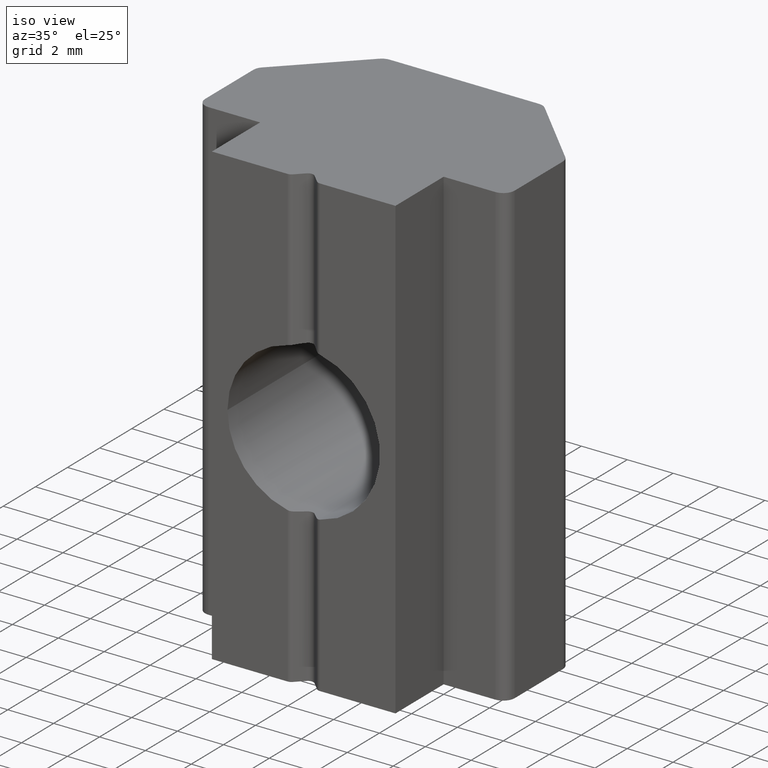
[diagram: clean part render]
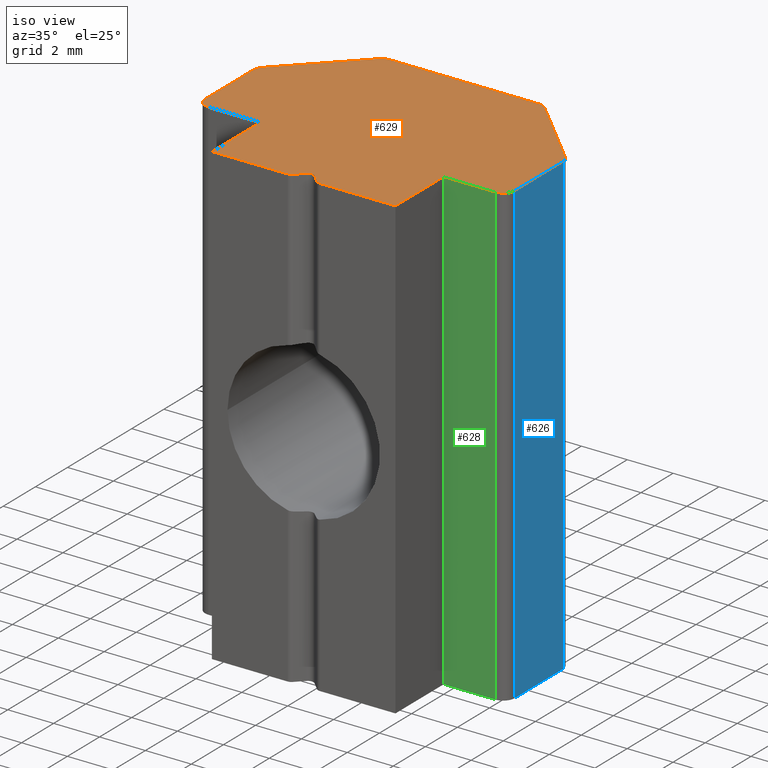
[diagram: same view with three faces highlighted in distinct colors, each labeled with its STEP entity id]
A machine part, iso view with three faces highlighted in distinct colors.
Their STEP definitions:

[orange] entity #629 — the highlighted planar face has unit normal (0, 0, 1).
#32=PLANE('',#707);
#63=FACE_OUTER_BOUND('',#94,.T.);
#94=EDGE_LOOP('',(#564,#565,#566,#567,#568,#569,#570,#571,#572,#573,#574,
#575,#576,#577,#578,#579,#580,#581,#582,#583,#584,#585));
#105=LINE('',#993,#162);
#115=LINE('',#1020,#172);
#120=LINE('',#1034,#177);
#123=LINE('',#1042,#180);
#124=LINE('',#1045,#181);
#137=LINE('',#1079,#194);
#138=LINE('',#1082,#195);
#140=LINE('',#1086,#197);
#143=LINE('',#1094,#200);
#146=LINE('',#1102,#203);
#149=LINE('',#1110,#206);
#152=LINE('',#1118,#209);
#155=LINE('',#1125,#212);
#162=VECTOR('',#742,10.);
#172=VECTOR('',#774,10.);
#177=VECTOR('',#787,10.);
#180=VECTOR('',#796,10.);
#181=VECTOR('',#799,10.);
#194=VECTOR('',#826,10.);
#195=VECTOR('',#829,10.);
#197=VECTOR('',#833,10.);
#200=VECTOR('',#842,10.);
#203=VECTOR('',#851,10.);
#206=VECTOR('',#862,10.);
#209=VECTOR('',#871,10.);
#212=VECTOR('',#880,10.);
#220=CIRCLE('',#667,0.25);
#222=CIRCLE('',#671,0.249999999999999);
#223=CIRCLE('',#675,0.5);
#225=CIRCLE('',#679,0.25);
#231=CIRCLE('',#692,0.499999999999999);
#232=CIRCLE('',#695,0.500000000000005);
#233=CIRCLE('',#698,0.499999999999994);
#234=CIRCLE('',#702,0.500000000000001);
#235=CIRCLE('',#705,0.499999999999999);
#267=VERTEX_POINT('',#990);
#268=VERTEX_POINT('',#992);
#271=VERTEX_POINT('',#1004);
#272=VERTEX_POINT('',#1006);
#274=VERTEX_POINT('',#1014);
#275=VERTEX_POINT('',#1022);
#276=VERTEX_POINT('',#1024);
#279=VERTEX_POINT('',#1032);
#280=VERTEX_POINT('',#1036);
#281=VERTEX_POINT('',#1038);
#282=VERTEX_POINT('',#1044);
#296=VERTEX_POINT('',#1077);
#297=VERTEX_POINT('',#1081);
#298=VERTEX_POINT('',#1085);
#299=VERTEX_POINT('',#1089);
#300=VERTEX_POINT('',#1093);
#301=VERTEX_POINT('',#1097);
#302=VERTEX_POINT('',#1101);
#303=VERTEX_POINT('',#1109);
#304=VERTEX_POINT('',#1113);
#305=VERTEX_POINT('',#1117);
#306=VERTEX_POINT('',#1121);
#332=EDGE_CURVE('',#268,#267,#105,.T.);
#339=EDGE_CURVE('',#272,#271,#220,.T.);
#343=EDGE_CURVE('',#274,#268,#222,.T.);
#346=EDGE_CURVE('',#271,#274,#115,.T.);
#348=EDGE_CURVE('',#276,#275,#223,.T.);
#353=EDGE_CURVE('',#275,#279,#120,.T.);
#355=EDGE_CURVE('',#281,#280,#225,.T.);
#357=EDGE_CURVE('',#280,#272,#123,.T.);
#358=EDGE_CURVE('',#282,#281,#124,.T.);
#376=EDGE_CURVE('',#267,#296,#137,.T.);
#377=EDGE_CURVE('',#297,#282,#138,.T.);
#379=EDGE_CURVE('',#298,#297,#140,.T.);
#381=EDGE_CURVE('',#299,#298,#231,.T.);
#383=EDGE_CURVE('',#300,#299,#143,.T.);
#385=EDGE_CURVE('',#301,#300,#232,.T.);
#387=EDGE_CURVE('',#302,#301,#146,.T.);
#390=EDGE_CURVE('',#279,#302,#233,.T.);
#391=EDGE_CURVE('',#303,#276,#149,.T.);
#393=EDGE_CURVE('',#304,#303,#234,.T.);
#395=EDGE_CURVE('',#305,#304,#152,.T.);
#397=EDGE_CURVE('',#306,#305,#235,.T.);
#399=EDGE_CURVE('',#296,#306,#155,.T.);
#564=ORIENTED_EDGE('',*,*,#343,.T.);
#565=ORIENTED_EDGE('',*,*,#332,.T.);
#566=ORIENTED_EDGE('',*,*,#376,.T.);
#567=ORIENTED_EDGE('',*,*,#399,.T.);
#568=ORIENTED_EDGE('',*,*,#397,.T.);
#569=ORIENTED_EDGE('',*,*,#395,.T.);
#570=ORIENTED_EDGE('',*,*,#393,.T.);
#571=ORIENTED_EDGE('',*,*,#391,.T.);
#572=ORIENTED_EDGE('',*,*,#348,.T.);
#573=ORIENTED_EDGE('',*,*,#353,.T.);
#574=ORIENTED_EDGE('',*,*,#390,.T.);
#575=ORIENTED_EDGE('',*,*,#387,.T.);
#576=ORIENTED_EDGE('',*,*,#385,.T.);
#577=ORIENTED_EDGE('',*,*,#383,.T.);
#578=ORIENTED_EDGE('',*,*,#381,.T.);
#579=ORIENTED_EDGE('',*,*,#379,.T.);
#580=ORIENTED_EDGE('',*,*,#377,.T.);
#581=ORIENTED_EDGE('',*,*,#358,.T.);
#582=ORIENTED_EDGE('',*,*,#355,.T.);
#583=ORIENTED_EDGE('',*,*,#357,.T.);
#584=ORIENTED_EDGE('',*,*,#339,.T.);
#585=ORIENTED_EDGE('',*,*,#346,.T.);
#629=ADVANCED_FACE('',(#63),#32,.T.);
#667=AXIS2_PLACEMENT_3D('',#1007,#756,#757);
#671=AXIS2_PLACEMENT_3D('',#1015,#766,#767);
#675=AXIS2_PLACEMENT_3D('',#1025,#778,#779);
#679=AXIS2_PLACEMENT_3D('',#1039,#791,#792);
#692=AXIS2_PLACEMENT_3D('',#1090,#837,#838);
#695=AXIS2_PLACEMENT_3D('',#1098,#846,#847);
#698=AXIS2_PLACEMENT_3D('',#1106,#856,#857);
#702=AXIS2_PLACEMENT_3D('',#1114,#866,#867);
#705=AXIS2_PLACEMENT_3D('',#1122,#875,#876);
#707=AXIS2_PLACEMENT_3D('',#1126,#881,#882);
#742=DIRECTION('',(1.,0.,0.));
#756=DIRECTION('center_axis',(0.,0.,-1.));
#757=DIRECTION('ref_axis',(0.707106781186547,0.707106781186548,0.));
#766=DIRECTION('center_axis',(0.,0.,1.));
#767=DIRECTION('ref_axis',(0.707106781186548,0.707106781186547,0.));
#774=DIRECTION('',(0.707106781186545,-0.707106781186549,0.));
#778=DIRECTION('center_axis',(0.,0.,1.));
#779=DIRECTION('ref_axis',(0.707106781186548,0.707106781186547,0.));
#787=DIRECTION('',(-1.,0.,0.));
#791=DIRECTION('center_axis',(0.,0.,1.));
#792=DIRECTION('ref_axis',(5.55111512312579E-16,1.,0.));
#796=DIRECTION('',(0.707106781186547,0.707106781186548,0.));
#799=DIRECTION('',(1.,0.,0.));
#826=DIRECTION('',(0.,1.,0.));
#829=DIRECTION('',(0.,-1.,0.));
#833=DIRECTION('',(1.,0.,0.));
#837=DIRECTION('center_axis',(0.,0.,1.));
#838=DIRECTION('ref_axis',(-1.,0.,0.));
#842=DIRECTION('',(0.,-1.,0.));
#846=DIRECTION('center_axis',(0.,0.,1.));
#847=DIRECTION('ref_axis',(-0.707106781186549,0.707106781186546,0.));
#851=DIRECTION('',(-0.707106781186547,-0.707106781186548,0.));
#856=DIRECTION('center_axis',(0.,0.,1.));
#857=DIRECTION('ref_axis',(0.,1.,0.));
#862=DIRECTION('',(-0.707106781186547,0.707106781186548,0.));
#866=DIRECTION('center_axis',(0.,0.,1.));
#867=DIRECTION('ref_axis',(1.,-1.11022302462516E-15,0.));
#871=DIRECTION('',(-3.70074341541719E-16,1.,0.));
#875=DIRECTION('center_axis',(0.,0.,1.));
#876=DIRECTION('ref_axis',(0.,-1.,0.));
#880=DIRECTION('',(1.,0.,0.));
#881=DIRECTION('center_axis',(0.,0.,1.));
#882=DIRECTION('ref_axis',(1.,0.,0.));
#990=CARTESIAN_POINT('',(4.,-3.,10.));
#992=CARTESIAN_POINT('',(0.707106781186547,-3.,10.));
#993=CARTESIAN_POINT('',(-4.,-3.,10.));
#1004=CARTESIAN_POINT('',(0.176776695296638,-2.57322330470336,10.));
#1006=CARTESIAN_POINT('',(-0.176776695296637,-2.57322330470336,10.));
#1007=CARTESIAN_POINT('Origin',(-4.71467650385233E-30,-2.75,10.));
#1014=CARTESIAN_POINT('',(0.530330085889911,-2.92677669529664,10.));
#1015=CARTESIAN_POINT('Origin',(0.707106781186547,-2.75,10.));
#1020=CARTESIAN_POINT('',(-0.790466963666722,-1.60597964574,10.));
#1022=CARTESIAN_POINT('',(3.25,7.,10.));
#1024=CARTESIAN_POINT('',(3.60355339059328,6.85355339059327,10.));
#1025=CARTESIAN_POINT('Origin',(3.25,6.5,10.));
#1032=CARTESIAN_POINT('',(-3.25,7.,10.));
#1034=CARTESIAN_POINT('',(3.25,7.,10.));
#1036=CARTESIAN_POINT('',(-0.53033008588991,-2.92677669529664,10.));
#1038=CARTESIAN_POINT('',(-0.707106781186547,-3.,10.));
#1039=CARTESIAN_POINT('Origin',(-0.707106781186547,-2.75,10.));
#1042=CARTESIAN_POINT('',(0.96724365896336,-1.42920295044337,10.));
#1044=CARTESIAN_POINT('',(-4.,-3.,10.));
#1045=CARTESIAN_POINT('',(-4.,-3.,10.));
#1077=CARTESIAN_POINT('',(4.,0.,10.));
#1079=CARTESIAN_POINT('',(4.,-3.,10.));
#1081=CARTESIAN_POINT('',(-4.,0.,10.));
#1082=CARTESIAN_POINT('',(-4.,0.,10.));
#1085=CARTESIAN_POINT('',(-6.25,0.,10.));
#1086=CARTESIAN_POINT('',(-6.25,0.,10.));
#1089=CARTESIAN_POINT('',(-6.75,0.5,10.));
#1090=CARTESIAN_POINT('Origin',(-6.25,0.5,10.));
#1093=CARTESIAN_POINT('',(-6.75,3.5,10.));
#1094=CARTESIAN_POINT('',(-6.75,3.5,10.));
#1097=CARTESIAN_POINT('',(-6.60355339059328,3.85355339059327,10.));
#1098=CARTESIAN_POINT('Origin',(-6.25,3.5,10.));
#1101=CARTESIAN_POINT('',(-3.60355339059328,6.85355339059327,10.));
#1102=CARTESIAN_POINT('',(-3.60355339059328,6.85355339059327,10.));
#1106=CARTESIAN_POINT('Origin',(-3.25,6.5,10.));
#1109=CARTESIAN_POINT('',(6.60355339059327,3.85355339059327,10.));
#1110=CARTESIAN_POINT('',(6.60355339059327,3.85355339059327,10.));
#1113=CARTESIAN_POINT('',(6.75,3.5,10.));
#1114=CARTESIAN_POINT('Origin',(6.25,3.5,10.));
#1117=CARTESIAN_POINT('',(6.75,0.5,10.));
#1118=CARTESIAN_POINT('',(6.75,0.5,10.));
#1121=CARTESIAN_POINT('',(6.25,0.,10.));
#1122=CARTESIAN_POINT('Origin',(6.25,0.5,10.));
#1125=CARTESIAN_POINT('',(4.,0.,10.));
#1126=CARTESIAN_POINT('Origin',(0.,1.82608141703999,10.));

[blue] entity #626 — the highlighted planar face has unit normal (1, 0, 0).
#30=PLANE('',#703);
#60=FACE_OUTER_BOUND('',#91,.T.);
#91=EDGE_LOOP('',(#552,#553,#554,#555));
#133=LINE('',#1070,#190);
#151=LINE('',#1115,#208);
#152=LINE('',#1118,#209);
#153=LINE('',#1119,#210);
#190=VECTOR('',#818,10.);
#208=VECTOR('',#868,10.);
#209=VECTOR('',#871,10.);
#210=VECTOR('',#872,10.);
#292=VERTEX_POINT('',#1067);
#293=VERTEX_POINT('',#1069);
#304=VERTEX_POINT('',#1113);
#305=VERTEX_POINT('',#1117);
#371=EDGE_CURVE('',#292,#293,#133,.T.);
#394=EDGE_CURVE('',#292,#304,#151,.T.);
#395=EDGE_CURVE('',#305,#304,#152,.T.);
#396=EDGE_CURVE('',#293,#305,#153,.T.);
#552=ORIENTED_EDGE('',*,*,#394,.T.);
#553=ORIENTED_EDGE('',*,*,#395,.F.);
#554=ORIENTED_EDGE('',*,*,#396,.F.);
#555=ORIENTED_EDGE('',*,*,#371,.F.);
#626=ADVANCED_FACE('',(#60),#30,.T.);
#703=AXIS2_PLACEMENT_3D('',#1116,#869,#870);
#818=DIRECTION('',(3.70074341541719E-16,-1.,0.));
#868=DIRECTION('',(0.,0.,1.));
#869=DIRECTION('center_axis',(1.,3.70074341541719E-16,0.));
#870=DIRECTION('ref_axis',(-3.70074341541719E-16,1.,0.));
#871=DIRECTION('',(-3.70074341541719E-16,1.,0.));
#872=DIRECTION('',(0.,0.,1.));
#1067=CARTESIAN_POINT('',(6.75,3.5,-10.));
#1069=CARTESIAN_POINT('',(6.75,0.5,-10.));
#1070=CARTESIAN_POINT('',(6.75,0.5,-10.));
#1113=CARTESIAN_POINT('',(6.75,3.5,10.));
#1115=CARTESIAN_POINT('',(6.75,3.5,0.));
#1116=CARTESIAN_POINT('Origin',(6.75,0.5,0.));
#1117=CARTESIAN_POINT('',(6.75,0.5,10.));
#1118=CARTESIAN_POINT('',(6.75,0.5,10.));
#1119=CARTESIAN_POINT('',(6.75,0.5,0.));

[green] entity #628 — the highlighted planar face has unit normal (0, -1, 0).
#31=PLANE('',#706);
#62=FACE_OUTER_BOUND('',#93,.T.);
#93=EDGE_LOOP('',(#560,#561,#562,#563));
#134=LINE('',#1074,#191);
#136=LINE('',#1078,#193);
#154=LINE('',#1123,#211);
#155=LINE('',#1125,#212);
#191=VECTOR('',#821,10.);
#193=VECTOR('',#825,10.);
#211=VECTOR('',#877,10.);
#212=VECTOR('',#880,10.);
#294=VERTEX_POINT('',#1071);
#295=VERTEX_POINT('',#1073);
#296=VERTEX_POINT('',#1077);
#306=VERTEX_POINT('',#1121);
#373=EDGE_CURVE('',#294,#295,#134,.T.);
#375=EDGE_CURVE('',#296,#295,#136,.T.);
#398=EDGE_CURVE('',#294,#306,#154,.T.);
#399=EDGE_CURVE('',#296,#306,#155,.T.);
#560=ORIENTED_EDGE('',*,*,#398,.T.);
#561=ORIENTED_EDGE('',*,*,#399,.F.);
#562=ORIENTED_EDGE('',*,*,#375,.T.);
#563=ORIENTED_EDGE('',*,*,#373,.F.);
#628=ADVANCED_FACE('',(#62),#31,.T.);
#706=AXIS2_PLACEMENT_3D('',#1124,#878,#879);
#821=DIRECTION('',(-1.,0.,0.));
#825=DIRECTION('',(0.,0.,-1.));
#877=DIRECTION('',(0.,0.,1.));
#878=DIRECTION('center_axis',(0.,-1.,0.));
#879=DIRECTION('ref_axis',(1.,0.,0.));
#880=DIRECTION('',(1.,0.,0.));
#1071=CARTESIAN_POINT('',(6.25,0.,-10.));
#1073=CARTESIAN_POINT('',(4.,0.,-10.));
#1074=CARTESIAN_POINT('',(4.,0.,-10.));
#1077=CARTESIAN_POINT('',(4.,0.,10.));
#1078=CARTESIAN_POINT('',(4.,0.,0.));
#1121=CARTESIAN_POINT('',(6.25,0.,10.));
#1123=CARTESIAN_POINT('',(6.25,0.,0.));
#1124=CARTESIAN_POINT('Origin',(4.,0.,0.));
#1125=CARTESIAN_POINT('',(4.,0.,10.));